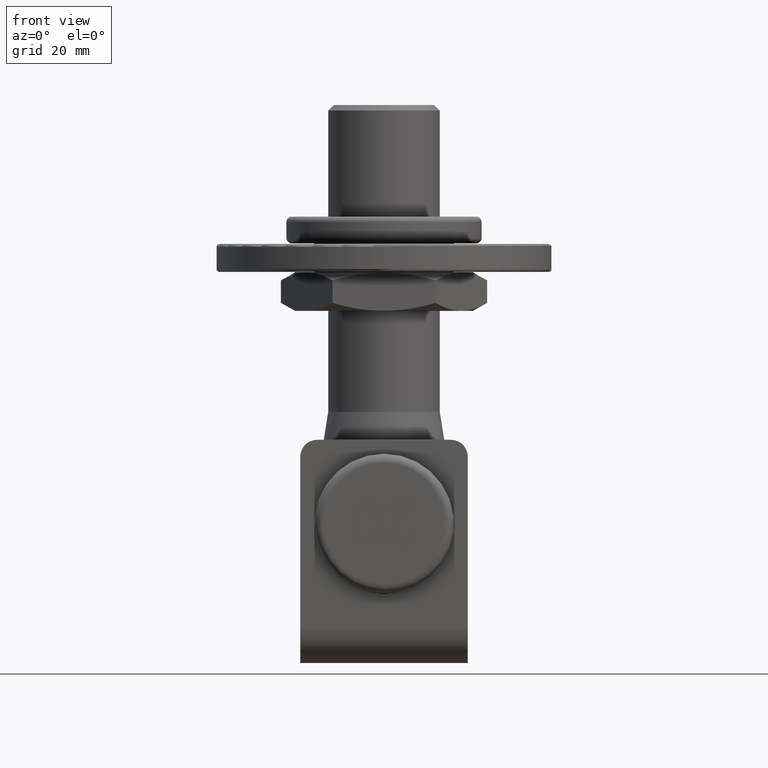
[diagram: clean part render]
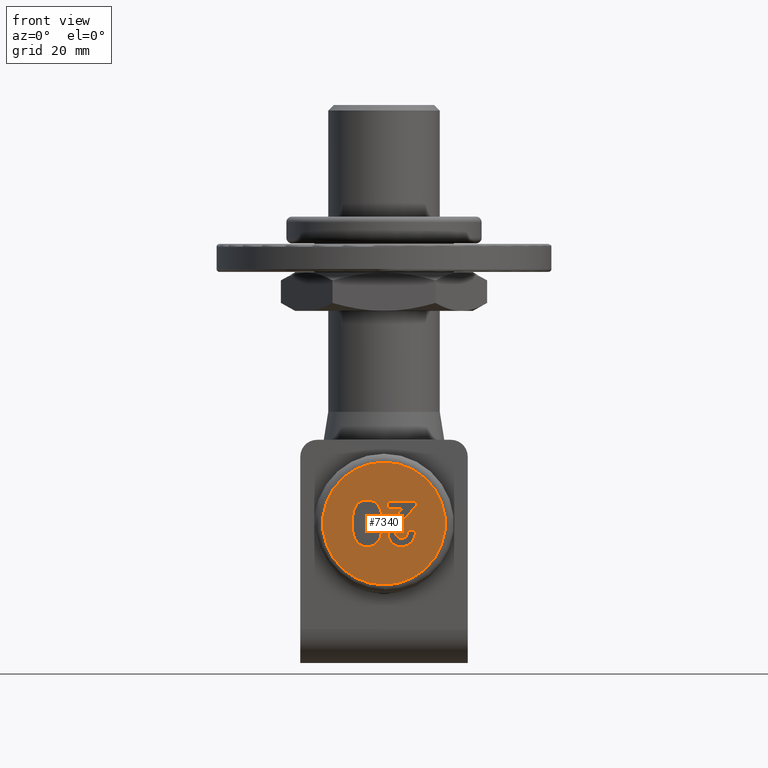
[diagram: same view with one face highlighted and labeled with its STEP entity id]
A machine part, front view. The second image highlights one B-rep face of the part: STEP entity #7340.
In plain terms, the highlighted planar face has unit normal (0, 1, -0).
Its self-contained STEP definition (entity closure, byte-faithful):
#102 = CARTESIAN_POINT ( 'NONE',  ( 5.655544175772400095, 0.000000000000000000, 1.036813794323081739 ) ) ;
#352 = AXIS2_PLACEMENT_3D ( 'NONE', #14722, #10178, #4335 ) ;
#473 = LINE ( 'NONE', #10151, #3681 ) ;
#474 = CARTESIAN_POINT ( 'NONE',  ( -1.797275197971464511, 0.000000000000000000, -0.9322960861938973665 ) ) ;
#489 = CARTESIAN_POINT ( 'NONE',  ( -5.902243589743589425, -0.000000000000000000, -4.000000000000000000 ) ) ;
#491 = CARTESIAN_POINT ( 'NONE',  ( 0.4629416183101647264, 0.000000000000000000, 1.766416286813966563 ) ) ;
#514 = CARTESIAN_POINT ( 'NONE',  ( 5.078828678267104380, 0.000000000000000000, -3.089744806459635118 ) ) ;
#618 = CARTESIAN_POINT ( 'NONE',  ( 0.7238341329331237084, 0.000000000000000000, -2.727839726644675888 ) ) ;
#671 = CARTESIAN_POINT ( 'NONE',  ( 0.5573441786762347583, 0.000000000000000000, -2.295563456860316709 ) ) ;
#707 = CARTESIAN_POINT ( 'NONE',  ( -3.213008426945764384, -0.000000000000000000, 2.715013062503777608 ) ) ;
#726 = CARTESIAN_POINT ( 'NONE',  ( 1.874495746132713858, 0.000000000000000000, -3.972678788740345190 ) ) ;
#733 = CARTESIAN_POINT ( 'NONE',  ( -2.137019230769230393, 0.000000000000000000, 1.660556891025640969 ) ) ;
#822 = CARTESIAN_POINT ( 'NONE',  ( -4.084365449211349031, 0.000000000000000000, 2.124727593738619635 ) ) ;
#858 = VERTEX_POINT ( 'NONE', #3939 ) ;
#917 = CARTESIAN_POINT ( 'NONE',  ( -3.694189072242435312, 0.000000000000000000, 2.568195882646817640 ) ) ;
#966 = EDGE_CURVE ( 'NONE', #13982, #13982, #11692, .T. ) ;
#972 = CARTESIAN_POINT ( 'NONE',  ( -2.137019230769230393, 0.000000000000000000, 1.660556891025640969 ) ) ;
#1000 = CARTESIAN_POINT ( 'NONE',  ( 2.367988351614428666, 0.000000000000000000, 4.081252028798862952 ) ) ;
#1025 = CARTESIAN_POINT ( 'NONE',  ( -3.352342202977410146, 0.000000000000000000, -0.5627216909195109640 ) ) ;
#1109 = CARTESIAN_POINT ( 'NONE',  ( -3.094225761217948900, 0.000000000000000000, 4.141025641025640525 ) ) ;
#1308 = CARTESIAN_POINT ( 'NONE',  ( -2.137019230769230393, 0.000000000000000000, 1.660556891025640969 ) ) ;
#1311 = CARTESIAN_POINT ( 'NONE',  ( 5.082010840145371411, 0.000000000000000000, 3.003103049096201183 ) ) ;
#1491 = EDGE_CURVE ( 'NONE', #4539, #12143, #14408, .T. ) ;
#1533 = CARTESIAN_POINT ( 'NONE',  ( -3.876365341910795514, 0.000000000000000000, 4.039931042971904418 ) ) ;
#1612 = VERTEX_POINT ( 'NONE', #10448 ) ;
#1625 = VERTEX_POINT ( 'NONE', #9378 ) ;
#1642 = CARTESIAN_POINT ( 'NONE',  ( 5.680617421165070624, 0.000000000000000000, -0.7747269361661133225 ) ) ;
#1677 = VECTOR ( 'NONE', #8451, 1000.000000000000000 ) ;
#1733 = CARTESIAN_POINT ( 'NONE',  ( -0.6105769230769229061, -0.000000000000000000, -4.000000000000000000 ) ) ;
#1747 = CARTESIAN_POINT ( 'NONE',  ( 3.812144415608095915, 0.000000000000000000, -4.103735614190932246 ) ) ;
#1797 = CARTESIAN_POINT ( 'NONE',  ( 4.729308829858908325, 0.000000000000000000, -3.555647249885427463 ) ) ;
#1841 = CARTESIAN_POINT ( 'NONE',  ( 1.033835571027489575, 0.000000000000000000, -3.263602371839377181 ) ) ;
#1851 = CARTESIAN_POINT ( 'NONE',  ( -2.453438000801281937, 0.000000000000000000, -1.727827023237179516 ) ) ;
#1892 = CARTESIAN_POINT ( 'NONE',  ( 1.281767219932940405, 0.000000000000000000, -3.553584027998987427 ) ) ;
#1927 = CARTESIAN_POINT ( 'NONE',  ( -3.287208067806062672, 0.000000000000000000, 2.712388658112912854 ) ) ;
#1934 = VECTOR ( 'NONE', #3483, 1000.000000000000000 ) ;
#1942 = CARTESIAN_POINT ( 'NONE',  ( 0.3060388496676075265, -0.000000000000000000, -0.2358523191634786798 ) ) ;
#1980 = CARTESIAN_POINT ( 'NONE',  ( -4.220661359659986012, 0.000000000000000000, 1.744982924655930079 ) ) ;
#2097 = CARTESIAN_POINT ( 'NONE',  ( -2.295601956000945076, 0.000000000000000000, 0.9282282457364093853 ) ) ;
#2235 = DIRECTION ( 'NONE',  ( 0.6847574953382552509, 0.000000000000000000, 0.7287710014662215352 ) ) ;
#2341 = CARTESIAN_POINT ( 'NONE',  ( 1.018837865916632168, -0.000000000000000000, 3.147244637438138870 ) ) ;
#2507 = CARTESIAN_POINT ( 'NONE',  ( 0.9572065304487178405, 1.355252715606880543E-17, 3.061385717147435681 ) ) ;
#2557 = CARTESIAN_POINT ( 'NONE',  ( -2.453438000801281937, -0.000000000000000000, -1.727827023237179516 ) ) ;
#2580 = VERTEX_POINT ( 'NONE', #4886 ) ;
#2632 = CARTESIAN_POINT ( 'NONE',  ( 4.577621429217217930, 0.000000000000000000, 3.601908964568982796 ) ) ;
#2885 = CARTESIAN_POINT ( 'NONE',  ( -5.375648293950741063, 0.000000000000000000, 2.729209880735643967 ) ) ;
#2937 = CARTESIAN_POINT ( 'NONE',  ( 1.560890092487003722, 0.000000000000000000, -3.790492124528212603 ) ) ;
#3000 = CARTESIAN_POINT ( 'NONE',  ( -0.7629474483434726118, 0.000000000000000000, 1.206803346592360215 ) ) ;
#3007 = B_SPLINE_CURVE_WITH_KNOTS ( 'NONE', 3,
 ( #733, #12909, #5569, #11506, #4404, #9168, #6681, #15212, #3260, #10407, #5526 ),
 .UNSPECIFIED., .F., .F.,
 ( 4, 1, 1, 1, 1, 1, 1, 1, 4 ),
 ( 0.000000000000000000, 0.1327548717475874607, 0.2572338481110650887, 0.3786007316763534969, 0.5014062774984534565, 0.6239419536469537064, 0.7436418348746460794, 0.8681208112381233466, 1.000000000000000000 ),
 .UNSPECIFIED. ) ;
#3123 = CARTESIAN_POINT ( 'NONE',  ( -4.137617043480065426, 0.000000000000000000, 2.006403472534702193 ) ) ;
#3143 = FACE_BOUND ( 'NONE', #6731, .T. ) ;
#3148 = CARTESIAN_POINT ( 'NONE',  ( 4.595776805851754077, 0.000000000000000000, -3.679473332939526387 ) ) ;
#3209 = EDGE_CURVE ( 'NONE', #6645, #1625, #9176, .T. ) ;
#3260 = CARTESIAN_POINT ( 'NONE',  ( -2.960541441748297586, 0.000000000000000000, 2.705722596143722125 ) ) ;
#3288 = CARTESIAN_POINT ( 'NONE',  ( -3.164839607124665832, -0.000000000000000000, -0.3552076562556815142 ) ) ;
#3296 = DIRECTION ( 'NONE',  ( -1.000000000000000000, 0.000000000000000000, 0.000000000000000000 ) ) ;
#3357 = VERTEX_POINT ( 'NONE', #6004 ) ;
#3395 = CARTESIAN_POINT ( 'NONE',  ( -2.846840657974124333, 0.000000000000000000, 0.03015276908359402694 ) ) ;
#3432 = PLANE ( 'NONE',  #12013 ) ;
#3483 = DIRECTION ( 'NONE',  ( 1.000000000000000000, 0.000000000000000000, 0.000000000000000000 ) ) ;
#3681 = VECTOR ( 'NONE', #5432, 1000.000000000000000 ) ;
#3720 = CARTESIAN_POINT ( 'NONE',  ( 4.428274317030202134, 0.000000000000000000, 3.715160959169337751 ) ) ;
#3750 = CARTESIAN_POINT ( 'NONE',  ( 0.3425072785023969280, 0.000000000000000000, 0.8971957510282908554 ) ) ;
#3846 = CARTESIAN_POINT ( 'NONE',  ( 5.698717948717948900, 0.000000000000000000, -0.03443008814102595239 ) ) ;
#3885 = VERTEX_POINT ( 'NONE', #8492 ) ;
#3896 = CARTESIAN_POINT ( 'NONE',  ( 5.569821722541247411, 0.000000000000000000, -1.731633225918342678 ) ) ;
#3898 = ORIENTED_EDGE ( 'NONE', *, *, #6453, .T. ) ;
#3922 = VERTEX_POINT ( 'NONE', #14479 ) ;
#3939 = CARTESIAN_POINT ( 'NONE',  ( -0.7123397435897438346, 0.000000000000000000, 1.760729667467948012 ) ) ;
#3941 = CARTESIAN_POINT ( 'NONE',  ( -3.185535030508386711, -0.000000000000000000, 4.139297340311456352 ) ) ;
#4054 = CARTESIAN_POINT ( 'NONE',  ( -0.9214497629501844367, 0.000000000000000000, 0.6236742223507992788 ) ) ;
#4102 = CARTESIAN_POINT ( 'NONE',  ( -1.190608166641720533, 0.000000000000000000, 0.005292778401732286912 ) ) ;
#4192 = CARTESIAN_POINT ( 'NONE',  ( 1.713299733088972765, 0.000000000000000000, -3.888069143573032793 ) ) ;
#4194 = ORIENTED_EDGE ( 'NONE', *, *, #14097, .T. ) ;
#4197 = CARTESIAN_POINT ( 'NONE',  ( 4.971032620043923878, 0.000000000000000000, -3.260701125862149663 ) ) ;
#4230 = DIRECTION ( 'NONE',  ( -1.000000000000000000, 0.000000000000000000, 0.000000000000000000 ) ) ;
#4239 = CARTESIAN_POINT ( 'NONE',  ( 4.153838360228597537, 0.000000000000000000, -3.974612097571684988 ) ) ;
#4335 = DIRECTION ( 'NONE',  ( 0.000000000000000000, 0.000000000000000000, 1.000000000000000000 ) ) ;
#4404 = CARTESIAN_POINT ( 'NONE',  ( -2.294942116341228022, 0.000000000000000000, 2.263028827021325462 ) ) ;
#4497 = EDGE_LOOP ( 'NONE', ( #9504 ) ) ;
#4539 = VERTEX_POINT ( 'NONE', #8491 ) ;
#4540 = CARTESIAN_POINT ( 'NONE',  ( -2.204150980432503903, 0.000000000000000000, 1.182743466356510620 ) ) ;
#4629 = CARTESIAN_POINT ( 'NONE',  ( 0.000000000000000000, 0.000000000000000000, 11.00000000000000178 ) ) ;
#4653 = CARTESIAN_POINT ( 'NONE',  ( -2.995166320929204318, 0.000000000000000000, -0.1582817906552571319 ) ) ;
#4740 = CARTESIAN_POINT ( 'NONE',  ( -0.8854064119807786293, 0.000000000000000000, 2.657698934012234560 ) ) ;
#4850 = CARTESIAN_POINT ( 'NONE',  ( -2.445391423116449303, 0.000000000000000000, 4.072461149809852188 ) ) ;
#4886 = CARTESIAN_POINT ( 'NONE',  ( -3.552158453525640969, -0.000000000000000000, -0.7769806690705129970 ) ) ;
#4928 = EDGE_CURVE ( 'NONE', #12143, #6485, #9039, .T. ) ;
#4950 = CARTESIAN_POINT ( 'NONE',  ( 4.848140709206828269, 0.000000000000000000, 3.330792493200804838 ) ) ;
#5061 = CARTESIAN_POINT ( 'NONE',  ( -3.626380165319885496, 0.000000000000000000, 4.097154254762692460 ) ) ;
#5067 = CARTESIAN_POINT ( 'NONE',  ( 5.697959882691693956, -0.000000000000000000, -0.1627091242787807035 ) ) ;
#5119 = CARTESIAN_POINT ( 'NONE',  ( 5.277890020305247454, 0.000000000000000000, -2.707997397638125747 ) ) ;
#5162 = CARTESIAN_POINT ( 'NONE',  ( -4.112476950301005019, 0.000000000000000000, 3.954341984472365734 ) ) ;
#5218 = CARTESIAN_POINT ( 'NONE',  ( -1.085779833108662551, 0.000000000000000000, 0.2169055762161827272 ) ) ;
#5263 = CARTESIAN_POINT ( 'NONE',  ( -2.373466487656906043, -0.000000000000000000, -1.636003558742837871 ) ) ;
#5365 = CARTESIAN_POINT ( 'NONE',  ( 3.019493689903846256, 0.000000000000000000, -4.203525641025641413 ) ) ;
#5408 = CARTESIAN_POINT ( 'NONE',  ( 0.9219270566348457541, 0.000000000000000000, -3.099122237162234672 ) ) ;
#5416 = CARTESIAN_POINT ( 'NONE',  ( 4.852604595309395918, 0.000000000000000000, -3.414261323765183320 ) ) ;
#5421 = CARTESIAN_POINT ( 'NONE',  ( -0.8051026255691868805, 0.000000000000000000, 1.015941922423278410 ) ) ;
#5432 = DIRECTION ( 'NONE',  ( 0.000000000000000000, 0.000000000000000000, 1.000000000000000000 ) ) ;
#5463 = CARTESIAN_POINT ( 'NONE',  ( 2.410403817584000130, 0.000000000000000000, -4.146716590959108828 ) ) ;
#5520 = CARTESIAN_POINT ( 'NONE',  ( 4.309809776312897078, 0.000000000000000000, -3.889471215769248591 ) ) ;
#5526 = CARTESIAN_POINT ( 'NONE',  ( -3.175318008814103088, 1.355252715606880543E-17, 2.716346153846153744 ) ) ;
#5553 = B_SPLINE_CURVE_WITH_KNOTS ( 'NONE', 3,
 ( #11795, #707, #1927, #15292, #8024, #14059, #917, #15235, #14168, #13949, #10373, #822, #3123, #6922, #1980, #15404, #9254, #11584, #12776 ),
 .UNSPECIFIED., .F., .F.,
 ( 4, 1, 1, 1, 1, 1, 1, 1, 1, 1, 1, 1, 1, 1, 1, 1, 4 ),
 ( 0.000000000000000000, 0.05646686847186263569, 0.1111640986969633232, 0.1649370968759849010, 0.2183217523125940140, 0.2723929232482769081, 0.3279763434477040995, 0.3852910519840209158, 0.4449029182928196935, 0.5068438192198356784, 0.5694881852629682939, 0.6341532155537227267, 0.7009760953100501180, 0.7708974968462685151, 0.8436256105557796703, 0.9196596761155402255, 1.000000000000000000 ),
 .UNSPECIFIED. ) ;
#5561 = ORIENTED_EDGE ( 'NONE', *, *, #15245, .T. ) ;
#5569 = CARTESIAN_POINT ( 'NONE',  ( -2.145127047803850218, 0.000000000000000000, 1.876669145664015659 ) ) ;
#5801 = CARTESIAN_POINT ( 'NONE',  ( -2.500218956090486611, 0.000000000000000000, 0.5220679356594685183 ) ) ;
#5883 = CARTESIAN_POINT ( 'NONE',  ( -2.982144928523934979, -0.000000000000000000, 4.137528423575275838 ) ) ;
#5931 = CARTESIAN_POINT ( 'NONE',  ( -1.620664559944658523, 0.000000000000000000, 3.666011698111562023 ) ) ;
#6004 = CARTESIAN_POINT ( 'NONE',  ( -3.281850961538461675, -0.000000000000000000, -2.677083333333333481 ) ) ;
#6032 = ORIENTED_EDGE ( 'NONE', *, *, #6529, .T. ) ;
#6111 = B_SPLINE_CURVE_WITH_KNOTS ( 'NONE', 3,
 ( #13605, #6416, #13698, #11194, #7640, #11349, #2885, #14892, #13499, #12294, #14835, #13546, #6356, #5162, #1533, #5061, #8856, #3941, #7590 ),
 .UNSPECIFIED., .F., .F.,
 ( 4, 1, 1, 1, 1, 1, 1, 1, 1, 1, 1, 1, 1, 1, 1, 1, 4 ),
 ( 0.000000000000000000, 0.07493991020077266085, 0.1464280851715763498, 0.2147529716359184992, 0.2804215366912470864, 0.3436044295193644849, 0.4055426388186583742, 0.4661994619307758825, 0.5265381448244667029, 0.5859019063092089086, 0.6440895746157923041, 0.7016130759883658641, 0.7587535874365710642, 0.8166294493897661155, 0.8756554749553047134, 0.9366243322865291931, 1.000000000000000000 ),
 .UNSPECIFIED. ) ;
#6131 = CARTESIAN_POINT ( 'NONE',  ( 4.109693178513706080, 0.000000000000000000, 3.903754660982265534 ) ) ;
#6346 = FACE_OUTER_BOUND ( 'NONE', #4497, .T. ) ;
#6356 = CARTESIAN_POINT ( 'NONE',  ( -4.336948977161025454, 0.000000000000000000, 3.847215530833077324 ) ) ;
#6379 = CARTESIAN_POINT ( 'NONE',  ( -0.6105769230769229061, -0.000000000000000000, -4.000000000000000000 ) ) ;
#6416 = CARTESIAN_POINT ( 'NONE',  ( -5.692564976509389751, -0.000000000000000000, 1.399436132702227997 ) ) ;
#6453 = EDGE_CURVE ( 'NONE', #11202, #8545, #11315, .T. ) ;
#6469 = CARTESIAN_POINT ( 'NONE',  ( 5.618066848438044047, 0.000000000000000000, -1.434668924935119438 ) ) ;
#6485 = VERTEX_POINT ( 'NONE', #2507 ) ;
#6529 = EDGE_CURVE ( 'NONE', #3885, #4539, #12431, .T. ) ;
#6570 = CARTESIAN_POINT ( 'NONE',  ( 2.223275419319498347, 0.000000000000000000, -4.103404573955554469 ) ) ;
#6599 = CARTESIAN_POINT ( 'NONE',  ( 0.9042018347566534997, -0.000000000000000000, 2.973988579981912572 ) ) ;
#6629 = CARTESIAN_POINT ( 'NONE',  ( -0.8576735875219000382, 0.000000000000000000, 0.8217592550030331511 ) ) ;
#6645 = VERTEX_POINT ( 'NONE', #15205 ) ;
#6681 = CARTESIAN_POINT ( 'NONE',  ( -2.578647560328831023, 0.000000000000000000, 2.552544205070224059 ) ) ;
#6731 = EDGE_LOOP ( 'NONE', ( #15159, #12515, #6032, #13457, #12936 ) ) ;
#6873 = CARTESIAN_POINT ( 'NONE',  ( -2.596889408331713778, 0.000000000000000000, 0.3684513095209339673 ) ) ;
#6881 = CARTESIAN_POINT ( 'NONE',  ( -4.274038461538460787, 0.000000000000000000, 1.291666666666666741 ) ) ;
#6922 = CARTESIAN_POINT ( 'NONE',  ( -4.184501682538832590, 0.000000000000000000, 1.880273495763631564 ) ) ;
#6925 = CARTESIAN_POINT ( 'NONE',  ( -2.395269469221359859, 0.000000000000000000, 0.7073027578703243723 ) ) ;
#7178 = CARTESIAN_POINT ( 'NONE',  ( 2.086204939287279458, 0.000000000000000000, 3.996414933597113084 ) ) ;
#7286 = CARTESIAN_POINT ( 'NONE',  ( -0.7123397435897438346, 0.000000000000000000, 1.760729667467948012 ) ) ;
#7340 = ADVANCED_FACE ( 'NONE', ( #10726, #6346, #3143 ), #3432, .F. ) ;
#7371 = CARTESIAN_POINT ( 'NONE',  ( 4.716730086732782823, 0.000000000000000000, 3.472795843162341356 ) ) ;
#7418 = CARTESIAN_POINT ( 'NONE',  ( 5.186775702113008535, 0.000000000000000000, 2.818818344521386798 ) ) ;
#7499 = B_SPLINE_CURVE_WITH_KNOTS ( 'NONE', 3,
 ( #15407, #8240, #1025, #3288, #4653, #3395, #11798, #6873, #5801, #6925, #2097, #4540, #8083, #15566, #972 ),
 .UNSPECIFIED., .F., .F.,
 ( 4, 1, 1, 1, 1, 1, 1, 1, 1, 1, 1, 1, 4 ),
 ( 0.000000000000000000, 0.1038439242634203730, 0.2011148859465236582, 0.2911157193792174303, 0.3743484039713635969, 0.4507073961858711342, 0.5200404120163613086, 0.5832583224453373738, 0.6395782998253258800, 0.7415365099482678080, 0.8350600486817364443, 0.9208729600458338549, 0.9999999999999998890 ),
 .UNSPECIFIED. ) ;
#7590 = CARTESIAN_POINT ( 'NONE',  ( -3.094225761217948900, 0.000000000000000000, 4.141025641025640525 ) ) ;
#7640 = CARTESIAN_POINT ( 'NONE',  ( -5.568639152015999905, 0.000000000000000000, 2.204888930459387719 ) ) ;
#7653 = CARTESIAN_POINT ( 'NONE',  ( -0.7349885684765512517, 0.000000000000000000, 1.394397028974809771 ) ) ;
#7703 = CARTESIAN_POINT ( 'NONE',  ( 5.365118052294042705, 0.000000000000000000, -2.493903315433332324 ) ) ;
#7709 = CARTESIAN_POINT ( 'NONE',  ( -1.312666189866120270, -0.000000000000000000, -0.2152006577228012252 ) ) ;
#7759 = CARTESIAN_POINT ( 'NONE',  ( 3.432907295513866863, 0.000000000000000000, -4.181069160685673580 ) ) ;
#7846 = CARTESIAN_POINT ( 'NONE',  ( 0.6347484021890796857, 0.000000000000000000, -2.521029020208482407 ) ) ;
#7849 = CARTESIAN_POINT ( 'NONE',  ( 3.626484882609418037, 0.000000000000000000, -4.146855192426452952 ) ) ;
#7853 = CARTESIAN_POINT ( 'NONE',  ( -2.217811564540906222, 0.000000000000000000, -1.457280239098903474 ) ) ;
#7873 = CARTESIAN_POINT ( 'NONE',  ( 0.6649883967273197971, 0.000000000000000000, 2.486194247637050214 ) ) ;
#7896 = CARTESIAN_POINT ( 'NONE',  ( 1.153131053881268464, 0.000000000000000000, -3.415766660805239940 ) ) ;
#8024 = CARTESIAN_POINT ( 'NONE',  ( -3.500061466467534022, 0.000000000000000000, 2.664129744879789374 ) ) ;
#8083 = CARTESIAN_POINT ( 'NONE',  ( -2.148405282260224425, 0.000000000000000000, 1.426001400926590668 ) ) ;
#8240 = CARTESIAN_POINT ( 'NONE',  ( -3.484117449646309428, -0.000000000000000000, -0.7040216583616464296 ) ) ;
#8272 = CARTESIAN_POINT ( 'NONE',  ( -3.281850961538461675, -0.000000000000000000, -2.677083333333333481 ) ) ;
#8280 = CARTESIAN_POINT ( 'NONE',  ( -5.902243589743589425, -0.000000000000000000, -3.278119991987179294 ) ) ;
#8356 = CARTESIAN_POINT ( 'NONE',  ( -3.175318008814103088, 1.355252715606880543E-17, 2.716346153846153744 ) ) ;
#8431 = CARTESIAN_POINT ( 'NONE',  ( 3.574784197364051508, 0.000000000000000000, 4.083250785891809898 ) ) ;
#8434 = EDGE_CURVE ( 'NONE', #10791, #6645, #5553, .T. ) ;
#8441 = CARTESIAN_POINT ( 'NONE',  ( -2.763336877282517090, 0.000000000000000000, 4.130701035549255273 ) ) ;
#8451 = DIRECTION ( 'NONE',  ( 0.000000000000000000, 0.000000000000000000, -1.000000000000000000 ) ) ;
#8491 = CARTESIAN_POINT ( 'NONE',  ( 3.019493689903846256, 0.000000000000000000, -4.203525641025641413 ) ) ;
#8492 = CARTESIAN_POINT ( 'NONE',  ( 5.698717948717948900, 0.000000000000000000, -0.03443008814102595239 ) ) ;
#8497 = VERTEX_POINT ( 'NONE', #14918 ) ;
#8507 = ORIENTED_EDGE ( 'NONE', *, *, #9867, .T. ) ;
#8544 = CARTESIAN_POINT ( 'NONE',  ( 5.696651188579902048, 0.000000000000000000, 0.3388682412665434684 ) ) ;
#8545 = VERTEX_POINT ( 'NONE', #6379 ) ;
#8597 = CARTESIAN_POINT ( 'NONE',  ( 5.698717948717948900, 0.000000000000000000, -0.03443008814102595239 ) ) ;
#8648 = CARTESIAN_POINT ( 'NONE',  ( 5.282501325464853181, 0.000000000000000000, 2.619996014895177527 ) ) ;
#8698 = CARTESIAN_POINT ( 'NONE',  ( 4.969008740543736202, 0.000000000000000000, 3.173752078826038936 ) ) ;
#8717 = CARTESIAN_POINT ( 'NONE',  ( 5.653289301428645608, 0.000000000000000000, -1.115644004302293046 ) ) ;
#8738 = VECTOR ( 'NONE', #4230, 1000.000000000000000 ) ;
#8856 = CARTESIAN_POINT ( 'NONE',  ( -3.364685927559752265, 0.000000000000000000, 4.135906374358854443 ) ) ;
#8870 = B_SPLINE_CURVE_WITH_KNOTS ( 'NONE', 3,
 ( #14145, #2341, #13184, #14411, #13074, #14356, #7178, #1000, #13126, #10840, #15654 ),
 .UNSPECIFIED., .F., .F.,
 ( 4, 1, 1, 1, 1, 1, 1, 1, 4 ),
 ( 0.000000000000000000, 0.1323140339085642214, 0.2587000085531550031, 0.3809118214856535012, 0.5005348689728935652, 0.6209226176484482496, 0.7423757653984726090, 0.8682808341788562645, 1.000000000000000000 ),
 .UNSPECIFIED. ) ;
#8903 = ORIENTED_EDGE ( 'NONE', *, *, #14340, .T. ) ;
#9011 = CARTESIAN_POINT ( 'NONE',  ( 0.8185725394706182545, 0.000000000000000000, -2.920447973612386949 ) ) ;
#9023 = CARTESIAN_POINT ( 'NONE',  ( -0.7123397435897438346, 0.000000000000000000, 1.760729667467948012 ) ) ;
#9039 = B_SPLINE_CURVE_WITH_KNOTS ( 'NONE', 3,
 ( #15583, #12979, #15554, #3750, #11575, #491, #12566, #7873, #11477, #6599, #14975 ),
 .UNSPECIFIED., .F., .F.,
 ( 4, 1, 1, 1, 1, 1, 1, 1, 4 ),
 ( 0.000000000000000000, 0.1610711239484212964, 0.3107888083803543311, 0.4499038238309442939, 0.5783763165061850398, 0.6966172119048390510, 0.8059873227104094040, 0.9065617032890808114, 1.000000000000000000 ),
 .UNSPECIFIED. ) ;
#9075 = CARTESIAN_POINT ( 'NONE',  ( -1.455193599307816887, 0.000000000000000000, -0.4443791371122086664 ) ) ;
#9112 = CARTESIAN_POINT ( 'NONE',  ( 0.3074963118014607533, 0.000000000000000000, -0.4819197918950698378 ) ) ;
#9164 = CARTESIAN_POINT ( 'NONE',  ( 3.229226202437179616, 0.000000000000000000, -4.199977898119700903 ) ) ;
#9168 = CARTESIAN_POINT ( 'NONE',  ( -2.423239385318834316, 0.000000000000000000, 2.421948978617945780 ) ) ;
#9176 = LINE ( 'NONE', #6881, #9758 ) ;
#9192 = CARTESIAN_POINT ( 'NONE',  ( 0.3052884615384615641, 0.000000000000000000, -0.1091621594551286795 ) ) ;
#9227 = VERTEX_POINT ( 'NONE', #1308 ) ;
#9254 = CARTESIAN_POINT ( 'NONE',  ( -4.267006066071695969, 0.000000000000000000, 1.449582782190085961 ) ) ;
#9350 = CARTESIAN_POINT ( 'NONE',  ( 12.50000000000000000, 6.123233995736829515E-18, 0.000000000000000000 ) ) ;
#9378 = CARTESIAN_POINT ( 'NONE',  ( -5.698717948717948900, 0.000000000000000000, 1.291666666666666741 ) ) ;
#9504 = ORIENTED_EDGE ( 'NONE', *, *, #966, .T. ) ;
#9555 = CARTESIAN_POINT ( 'NONE',  ( -2.148465132005056066, 0.000000000000000000, 3.975045941067412159 ) ) ;
#9603 = CARTESIAN_POINT ( 'NONE',  ( 3.182707516310513629, 0.000000000000000000, 4.137988964797351343 ) ) ;
#9756 = VECTOR ( 'NONE', #2235, 1000.000000000000000 ) ;
#9758 = VECTOR ( 'NONE', #3296, 1000.000000000000000 ) ;
#9812 = CARTESIAN_POINT ( 'NONE',  ( 5.448735156180866568, 0.000000000000000000, 2.174458556773422924 ) ) ;
#9863 = CARTESIAN_POINT ( 'NONE',  ( 4.272278203493279136, 0.000000000000000000, 3.815194363517121712 ) ) ;
#9867 = EDGE_CURVE ( 'NONE', #1612, #2580, #10906, .T. ) ;
#9877 = LINE ( 'NONE', #8272, #1934 ) ;
#10028 = ORIENTED_EDGE ( 'NONE', *, *, #12409, .T. ) ;
#10137 = CARTESIAN_POINT ( 'NONE',  ( 5.181902546291112799, 0.000000000000000000, -2.906432071037211351 ) ) ;
#10142 = CARTESIAN_POINT ( 'NONE',  ( -0.9979105029854623554, 0.000000000000000000, 0.4228098939760751573 ) ) ;
#10151 = CARTESIAN_POINT ( 'NONE',  ( -5.902243589743589425, -0.000000000000000000, -4.000000000000000000 ) ) ;
#10178 = DIRECTION ( 'NONE',  ( 0.000000000000000000, -1.000000000000000000, 0.000000000000000000 ) ) ;
#10203 = DIRECTION ( 'NONE',  ( -0.6575212211385358385, 0.000000000000000000, -0.7534360249898385264 ) ) ;
#10237 = CARTESIAN_POINT ( 'NONE',  ( 2.605007268621599703, 0.000000000000000000, -4.181209755140413264 ) ) ;
#10249 = CARTESIAN_POINT ( 'NONE',  ( -0.7136714248626868651, -0.000000000000000000, 1.700264191952667314 ) ) ;
#10282 = EDGE_CURVE ( 'NONE', #10454, #3885, #11367, .T. ) ;
#10293 = CARTESIAN_POINT ( 'NONE',  ( 0.3866437110973287572, 0.000000000000000000, -1.489088539879430018 ) ) ;
#10338 = CARTESIAN_POINT ( 'NONE',  ( 0.3052884615384615641, 0.000000000000000000, -0.1091621594551286795 ) ) ;
#10373 = CARTESIAN_POINT ( 'NONE',  ( -4.019961197748575188, 0.000000000000000000, 2.233683800245235052 ) ) ;
#10407 = CARTESIAN_POINT ( 'NONE',  ( -3.102361197353023403, -0.000000000000000000, 2.712737469216676800 ) ) ;
#10448 = CARTESIAN_POINT ( 'NONE',  ( -5.902243589743589425, -0.000000000000000000, -3.278119991987179294 ) ) ;
#10454 = VERTEX_POINT ( 'NONE', #11334 ) ;
#10705 = EDGE_CURVE ( 'NONE', #2580, #9227, #7499, .T. ) ;
#10726 = FACE_BOUND ( 'NONE', #14782, .T. ) ;
#10728 = CARTESIAN_POINT ( 'NONE',  ( -0.7226449095674799539, 0.000000000000000000, 2.061916987739096374 ) ) ;
#10788 = CARTESIAN_POINT ( 'NONE',  ( -1.194227208463307655, 0.000000000000000000, 3.216070846194533317 ) ) ;
#10791 = VERTEX_POINT ( 'NONE', #8356 ) ;
#10831 = CARTESIAN_POINT ( 'NONE',  ( 3.382412797037607444, 0.000000000000000000, 4.116187188909901984 ) ) ;
#10840 = CARTESIAN_POINT ( 'NONE',  ( 2.873024180653310111, -0.000000000000000000, 4.137526298127976787 ) ) ;
#10854 = CARTESIAN_POINT ( 'NONE',  ( -0.6105769230769229061, -0.000000000000000000, -2.677083333333333481 ) ) ;
#10881 = CARTESIAN_POINT ( 'NONE',  ( 3.938445763467917082, 0.000000000000000000, 3.976522921025607893 ) ) ;
#10906 = LINE ( 'NONE', #8280, #9756 ) ;
#10933 = ORIENTED_EDGE ( 'NONE', *, *, #8434, .T. ) ;
#10971 = ORIENTED_EDGE ( 'NONE', *, *, #3209, .T. ) ;
#10981 = EDGE_CURVE ( 'NONE', #13472, #1612, #473, .T. ) ;
#11035 = CARTESIAN_POINT ( 'NONE',  ( 5.698016509708522470, -0.000000000000000000, 0.09226386418544381407 ) ) ;
#11136 = CARTESIAN_POINT ( 'NONE',  ( 5.571525201864685251, 0.000000000000000000, 1.648486364881818655 ) ) ;
#11194 = CARTESIAN_POINT ( 'NONE',  ( -5.632719819674847805, 0.000000000000000000, 1.915878225140207336 ) ) ;
#11202 = VERTEX_POINT ( 'NONE', #15434 ) ;
#11295 = EDGE_CURVE ( 'NONE', #3922, #858, #11669, .T. ) ;
#11315 = LINE ( 'NONE', #10854, #1677 ) ;
#11334 = CARTESIAN_POINT ( 'NONE',  ( 2.978152544070512775, 0.000000000000000000, 4.141025641025640525 ) ) ;
#11349 = CARTESIAN_POINT ( 'NONE',  ( -5.483114994210255055, 0.000000000000000000, 2.476032323922627842 ) ) ;
#11367 = B_SPLINE_CURVE_WITH_KNOTS ( 'NONE', 3,
 ( #13119, #15703, #9603, #10831, #8431, #13284, #10881, #6131, #9863, #3720, #2632, #7371, #4950, #8698, #1311, #7418, #8648, #12133, #9812, #13534, #11136, #13339, #102, #14603, #8544, #11035, #8597 ),
 .UNSPECIFIED., .F., .F.,
 ( 4, 1, 1, 1, 1, 1, 1, 1, 1, 1, 1, 1, 1, 1, 1, 1, 1, 1, 1, 1, 1, 1, 1, 1, 4 ),
 ( 0.000000000000000000, 0.03663489025512738084, 0.07203398234778958520, 0.1066259706074962205, 0.1403056939382974488, 0.1736194704926826982, 0.2064256725696815009, 0.2390670061327426488, 0.2718828805625947420, 0.3048398888131204632, 0.3385290337045874787, 0.3726161878593849952, 0.4075482500265397157, 0.4437189059571696181, 0.4813115090919060646, 0.5201129981462018215, 0.5609129028334481903, 0.6040246006136040791, 0.6500745638656779679, 0.6995722277770579645, 0.7523625390892968445, 0.8087887173463875756, 0.8689542125204782197, 0.9326747199379386011, 1.000000000000000000 ),
 .UNSPECIFIED. ) ;
#11425 = LINE ( 'NONE', #2557, #11979 ) ;
#11448 = CARTESIAN_POINT ( 'NONE',  ( 2.044924457995196398, 0.000000000000000000, -4.043804362932614360 ) ) ;
#11477 = CARTESIAN_POINT ( 'NONE',  ( 0.7941443606574321024, 0.000000000000000000, 2.792519598142616744 ) ) ;
#11503 = CARTESIAN_POINT ( 'NONE',  ( 3.090551910416934334, -0.000000000000000000, -4.202323651430948104 ) ) ;
#11506 = CARTESIAN_POINT ( 'NONE',  ( -2.203895692964122688, 0.000000000000000000, 2.079440271687462261 ) ) ;
#11575 = CARTESIAN_POINT ( 'NONE',  ( 0.3912905492915476624, 0.000000000000000000, 1.350751313810874654 ) ) ;
#11584 = CARTESIAN_POINT ( 'NONE',  ( -4.271651685822079436, -0.000000000000000000, 1.345262962770624071 ) ) ;
#11669 = B_SPLINE_CURVE_WITH_KNOTS ( 'NONE', 3,
 ( #1109, #5883, #8441, #4850, #9555, #14512, #5931, #14459, #10788, #11984, #4740, #13295, #10728, #12036, #7286 ),
 .UNSPECIFIED., .F., .F.,
 ( 4, 1, 1, 1, 1, 1, 1, 1, 1, 1, 1, 1, 4 ),
 ( 0.000000000000000000, 0.08961452888211547674, 0.1749485612865261941, 0.2575481258745663804, 0.3389007874900941131, 0.4200531858831904608, 0.5014014271193617533, 0.5842520267159579950, 0.6703704767286310373, 0.7564732666582516529, 0.8392065940498484311, 0.9201204666578203240, 1.000000000000000000 ),
 .UNSPECIFIED. ) ;
#11692 = CIRCLE ( 'NONE', #352, 11.00000000000000178 ) ;
#11795 = CARTESIAN_POINT ( 'NONE',  ( -3.175318008814103088, 1.355252715606880543E-17, 2.716346153846153744 ) ) ;
#11798 = CARTESIAN_POINT ( 'NONE',  ( -2.712078678412904953, 0.000000000000000000, 0.2039839726736076275 ) ) ;
#11979 = VECTOR ( 'NONE', #10203, 1000.000000000000114 ) ;
#11984 = CARTESIAN_POINT ( 'NONE',  ( -1.025553830211470396, 0.000000000000000000, 2.944866338681040752 ) ) ;
#12013 = AXIS2_PLACEMENT_3D ( 'NONE', #9350, #14096, #13081 ) ;
#12036 = CARTESIAN_POINT ( 'NONE',  ( -0.7157600360901624770, -0.000000000000000000, 1.860693970320535406 ) ) ;
#12133 = CARTESIAN_POINT ( 'NONE',  ( 5.370260566065430119, 0.000000000000000000, 2.406277269533635632 ) ) ;
#12143 = VERTEX_POINT ( 'NONE', #9192 ) ;
#12251 = ORIENTED_EDGE ( 'NONE', *, *, #15144, .T. ) ;
#12294 = CARTESIAN_POINT ( 'NONE',  ( -4.931651332867913240, 0.000000000000000000, 3.381347277548414798 ) ) ;
#12318 = ORIENTED_EDGE ( 'NONE', *, *, #12838, .T. ) ;
#12348 = CARTESIAN_POINT ( 'NONE',  ( 5.446177570223304620, 0.000000000000000000, -2.261586858026130464 ) ) ;
#12393 = CARTESIAN_POINT ( 'NONE',  ( 2.948437387331018567, -0.000000000000000000, -4.202300465860082213 ) ) ;
#12409 = EDGE_CURVE ( 'NONE', #8497, #3357, #11425, .T. ) ;
#12431 = B_SPLINE_CURVE_WITH_KNOTS ( 'NONE', 3,
 ( #3846, #5067, #14899, #1642, #8717, #6469, #3896, #14953, #12348, #7703, #5119, #10137, #514, #4197, #5416, #1797, #3148, #12695, #5520, #4239, #13868, #1747, #7849, #7759, #9164, #11503, #5365 ),
 .UNSPECIFIED., .F., .F.,
 ( 4, 1, 1, 1, 1, 1, 1, 1, 1, 1, 1, 1, 1, 1, 1, 1, 1, 1, 1, 1, 1, 1, 1, 1, 4 ),
 ( 0.000000000000000000, 0.06849087449695397123, 0.1330765404908784977, 0.1938289871915770957, 0.2510828574460499674, 0.3044008371534409063, 0.3544083437255269864, 0.4012947817777443027, 0.4447006845454780644, 0.4856924920892444764, 0.5246764844274039996, 0.5623067591777589636, 0.5979465846525345851, 0.6324735490267262561, 0.6657520428969367909, 0.6979852995504443047, 0.7295862241486804622, 0.7608251968744890181, 0.7923550795612060993, 0.8243126039626629264, 0.8571562719790690732, 0.8909268871454045780, 0.9259604429162998640, 0.9620613229943376643, 1.000000000000000000 ),
 .UNSPECIFIED. ) ;
#12515 = ORIENTED_EDGE ( 'NONE', *, *, #10282, .T. ) ;
#12547 = CARTESIAN_POINT ( 'NONE',  ( -1.616468843625913587, -0.000000000000000000, -0.6835366760949115328 ) ) ;
#12566 = CARTESIAN_POINT ( 'NONE',  ( 0.5515371742017904921, 0.000000000000000000, 2.145730171855938284 ) ) ;
#12640 = CARTESIAN_POINT ( 'NONE',  ( 0.4320282794000732673, 0.000000000000000000, -1.780575894750609400 ) ) ;
#12689 = CARTESIAN_POINT ( 'NONE',  ( 2.809239135577227930, 0.000000000000000000, -4.199900365728736595 ) ) ;
#12695 = CARTESIAN_POINT ( 'NONE',  ( 4.457630737724028513, 0.000000000000000000, -3.792121013539297980 ) ) ;
#12776 = CARTESIAN_POINT ( 'NONE',  ( -4.274038461538460787, 0.000000000000000000, 1.291666666666666741 ) ) ;
#12811 = ORIENTED_EDGE ( 'NONE', *, *, #11295, .T. ) ;
#12838 = EDGE_CURVE ( 'NONE', #1625, #3922, #6111, .T. ) ;
#12909 = CARTESIAN_POINT ( 'NONE',  ( -2.139779188059723669, -0.000000000000000000, 1.734123005086575242 ) ) ;
#12913 = B_SPLINE_CURVE_WITH_KNOTS ( 'NONE', 3,
 ( #9023, #10249, #14904, #7653, #3000, #5421, #6629, #4054, #10142, #5218, #4102, #7709, #9075, #12547, #474, #15107, #7853, #5263, #1851 ),
 .UNSPECIFIED., .F., .F.,
 ( 4, 1, 1, 1, 1, 1, 1, 1, 1, 1, 1, 1, 1, 1, 1, 1, 4 ),
 ( 0.000000000000000000, 0.04551775165131786982, 0.09161599061816486089, 0.1392465550335722502, 0.1882415637234042816, 0.2386730793725370114, 0.2906638743206419462, 0.3448398555786326702, 0.4004316067351771924, 0.4591437176132942555, 0.5225510475946141264, 0.5901008583230447080, 0.6622596565248672906, 0.7396813070012565605, 0.8215754713854219737, 0.9083300466844452803, 1.000000000000000000 ),
 .UNSPECIFIED. ) ;
#12936 = ORIENTED_EDGE ( 'NONE', *, *, #4928, .T. ) ;
#12979 = CARTESIAN_POINT ( 'NONE',  ( 0.3066477194922671567, -0.000000000000000000, 0.06686384399741546192 ) ) ;
#13074 = CARTESIAN_POINT ( 'NONE',  ( 1.576409144460856115, 0.000000000000000000, 3.723981792565752791 ) ) ;
#13081 = DIRECTION ( 'NONE',  ( 0.000000000000000000, 0.000000000000000000, 1.000000000000000000 ) ) ;
#13119 = CARTESIAN_POINT ( 'NONE',  ( 2.978152544070512775, 0.000000000000000000, 4.141025641025640525 ) ) ;
#13126 = CARTESIAN_POINT ( 'NONE',  ( 2.667407830204783004, 0.000000000000000000, 4.130682073675155053 ) ) ;
#13184 = CARTESIAN_POINT ( 'NONE',  ( 1.139339271109295781, 0.000000000000000000, 3.315115744964939548 ) ) ;
#13257 = LINE ( 'NONE', #1733, #8738 ) ;
#13284 = CARTESIAN_POINT ( 'NONE',  ( 3.760574298176227348, 0.000000000000000000, 4.037315988792429700 ) ) ;
#13295 = CARTESIAN_POINT ( 'NONE',  ( -0.7871969390978932335, 0.000000000000000000, 2.360755929256764141 ) ) ;
#13339 = CARTESIAN_POINT ( 'NONE',  ( 5.619376402289756989, 0.000000000000000000, 1.353594684979938068 ) ) ;
#13457 = ORIENTED_EDGE ( 'NONE', *, *, #1491, .T. ) ;
#13472 = VERTEX_POINT ( 'NONE', #489 ) ;
#13499 = CARTESIAN_POINT ( 'NONE',  ( -5.099947988759604200, 0.000000000000000000, 3.183013833520041747 ) ) ;
#13534 = CARTESIAN_POINT ( 'NONE',  ( 5.514834206122764648, 0.000000000000000000, 1.921880815283955712 ) ) ;
#13546 = CARTESIAN_POINT ( 'NONE',  ( -4.549743199536072424, 0.000000000000000000, 3.717035086168774871 ) ) ;
#13605 = CARTESIAN_POINT ( 'NONE',  ( -5.698717948717948900, 0.000000000000000000, 1.291666666666666741 ) ) ;
#13698 = CARTESIAN_POINT ( 'NONE',  ( -5.680542438235731240, 0.000000000000000000, 1.610011198902237650 ) ) ;
#13804 = CARTESIAN_POINT ( 'NONE',  ( 1.417787194172644094, 0.000000000000000000, -3.678598142121044301 ) ) ;
#13865 = CARTESIAN_POINT ( 'NONE',  ( 0.3504086977789685475, 0.000000000000000000, -1.175585121866129734 ) ) ;
#13868 = CARTESIAN_POINT ( 'NONE',  ( 3.986935790003621971, 0.000000000000000000, -4.043671464989691877 ) ) ;
#13949 = CARTESIAN_POINT ( 'NONE',  ( -3.947449920326616457, 0.000000000000000000, 2.333204459700810141 ) ) ;
#13968 = CARTESIAN_POINT ( 'NONE',  ( 0.4884580137550200152, 0.000000000000000000, -2.049429657763704338 ) ) ;
#13982 = VERTEX_POINT ( 'NONE', #4629 ) ;
#14042 = ORIENTED_EDGE ( 'NONE', *, *, #10705, .T. ) ;
#14059 = CARTESIAN_POINT ( 'NONE',  ( -3.599720439399597627, 0.000000000000000000, 2.622876867625074215 ) ) ;
#14082 = EDGE_CURVE ( 'NONE', #6485, #10454, #8870, .T. ) ;
#14096 = DIRECTION ( 'NONE',  ( -0.000000000000000000, 1.000000000000000000, 0.000000000000000000 ) ) ;
#14097 = EDGE_CURVE ( 'NONE', #3357, #11202, #9877, .T. ) ;
#14145 = CARTESIAN_POINT ( 'NONE',  ( 0.9572065304487178405, 1.355252715606880543E-17, 3.061385717147435681 ) ) ;
#14168 = CARTESIAN_POINT ( 'NONE',  ( -3.867778627243684042, 0.000000000000000000, 2.422380654399172606 ) ) ;
#14277 = ORIENTED_EDGE ( 'NONE', *, *, #10981, .T. ) ;
#14340 = EDGE_CURVE ( 'NONE', #8545, #13472, #13257, .T. ) ;
#14356 = CARTESIAN_POINT ( 'NONE',  ( 1.823098172017722840, 0.000000000000000000, 3.876298201301465518 ) ) ;
#14408 = B_SPLINE_CURVE_WITH_KNOTS ( 'NONE', 3,
 ( #14998, #12393, #12689, #10237, #5463, #6570, #11448, #726, #4192, #2937, #13804, #1892, #7896, #1841, #5408, #9011, #618, #7846, #671, #13968, #12640, #10293, #13865, #15254, #9112, #1942, #10338 ),
 .UNSPECIFIED., .F., .F.,
 ( 4, 1, 1, 1, 1, 1, 1, 1, 1, 1, 1, 1, 1, 1, 1, 1, 1, 1, 1, 1, 1, 1, 1, 1, 4 ),
 ( 0.000000000000000000, 0.03821733796913608788, 0.07486720303994333359, 0.1101580815531043311, 0.1444539266593009852, 0.1780797262741529441, 0.2111707725935978164, 0.2436870542144174423, 0.2758717334447992053, 0.3083755160139862728, 0.3412633249363585253, 0.3751503394709052031, 0.4096552607042129313, 0.4451573674923580137, 0.4820734672046716462, 0.5205757562184275544, 0.5605536808978379693, 0.6031075754382527743, 0.6486887095294887606, 0.6979476778875631782, 0.7507677670183533492, 0.8073094024459644968, 0.8676555707911407511, 0.9318612220995585727, 0.9999999999999998890 ),
 .UNSPECIFIED. ) ;
#14411 = CARTESIAN_POINT ( 'NONE',  ( 1.350039346351526781, 0.000000000000000000, 3.535499129975909760 ) ) ;
#14459 = CARTESIAN_POINT ( 'NONE',  ( -1.392179094005034479, 0.000000000000000000, 3.459833487927240991 ) ) ;
#14479 = CARTESIAN_POINT ( 'NONE',  ( -3.094225761217948900, 0.000000000000000000, 4.141025641025640525 ) ) ;
#14512 = CARTESIAN_POINT ( 'NONE',  ( -1.872773841468891698, 0.000000000000000000, 3.838931203728926267 ) ) ;
#14603 = CARTESIAN_POINT ( 'NONE',  ( 5.679921983201782432, 0.000000000000000000, 0.6983541462676009504 ) ) ;
#14722 = CARTESIAN_POINT ( 'NONE',  ( 0.000000000000000000, 0.000000000000000000, 0.000000000000000000 ) ) ;
#14782 = EDGE_LOOP ( 'NONE', ( #10933, #10971, #12318, #12811, #12251, #10028, #4194, #3898, #8903, #14277, #8507, #14042, #5561 ) ) ;
#14835 = CARTESIAN_POINT ( 'NONE',  ( -4.746971692904915940, 0.000000000000000000, 3.559274040384149185 ) ) ;
#14892 = CARTESIAN_POINT ( 'NONE',  ( -5.249004446333356277, 0.000000000000000000, 2.965284696980917456 ) ) ;
#14899 = CARTESIAN_POINT ( 'NONE',  ( 5.696486974001617298, 0.000000000000000000, -0.4119529902988589010 ) ) ;
#14904 = CARTESIAN_POINT ( 'NONE',  ( -0.7163517703231326861, 0.000000000000000000, 1.578562125471743682 ) ) ;
#14918 = CARTESIAN_POINT ( 'NONE',  ( -2.453438000801281937, 0.000000000000000000, -1.727827023237179516 ) ) ;
#14953 = CARTESIAN_POINT ( 'NONE',  ( 5.513319973683585395, 0.000000000000000000, -2.007305845079224937 ) ) ;
#14975 = CARTESIAN_POINT ( 'NONE',  ( 0.9572065304487178405, 1.355252715606880543E-17, 3.061385717147435681 ) ) ;
#14998 = CARTESIAN_POINT ( 'NONE',  ( 3.019493689903846256, 0.000000000000000000, -4.203525641025641413 ) ) ;
#15107 = CARTESIAN_POINT ( 'NONE',  ( -1.998495299290667715, -0.000000000000000000, -1.189908026435548161 ) ) ;
#15144 = EDGE_CURVE ( 'NONE', #858, #8497, #12913, .T. ) ;
#15159 = ORIENTED_EDGE ( 'NONE', *, *, #14082, .T. ) ;
#15205 = CARTESIAN_POINT ( 'NONE',  ( -4.274038461538460787, 0.000000000000000000, 1.291666666666666741 ) ) ;
#15212 = CARTESIAN_POINT ( 'NONE',  ( -2.758236304647022408, 0.000000000000000000, 2.649677265489014832 ) ) ;
#15235 = CARTESIAN_POINT ( 'NONE',  ( -3.783229085175515038, 0.000000000000000000, 2.500792856897881666 ) ) ;
#15245 = EDGE_CURVE ( 'NONE', #9227, #10791, #3007, .T. ) ;
#15254 = CARTESIAN_POINT ( 'NONE',  ( 0.3234540127185159819, 0.000000000000000000, -0.8399143216687060542 ) ) ;
#15292 = CARTESIAN_POINT ( 'NONE',  ( -3.396275740231773366, 0.000000000000000000, 2.694918708150235265 ) ) ;
#15404 = CARTESIAN_POINT ( 'NONE',  ( -4.246990090357850356, 0.000000000000000000, 1.601341458173728194 ) ) ;
#15407 = CARTESIAN_POINT ( 'NONE',  ( -3.552158453525640969, -0.000000000000000000, -0.7769806690705129970 ) ) ;
#15434 = CARTESIAN_POINT ( 'NONE',  ( -0.6105769230769229061, -0.000000000000000000, -2.677083333333333481 ) ) ;
#15554 = CARTESIAN_POINT ( 'NONE',  ( 0.3092704252224390826, 0.000000000000000000, 0.4065082850115028235 ) ) ;
#15566 = CARTESIAN_POINT ( 'NONE',  ( -2.140710612985854855, -0.000000000000000000, 1.584513500070654946 ) ) ;
#15583 = CARTESIAN_POINT ( 'NONE',  ( 0.3052884615384615641, 0.000000000000000000, -0.1091621594551286795 ) ) ;
#15654 = CARTESIAN_POINT ( 'NONE',  ( 2.978152544070512775, 0.000000000000000000, 4.141025641025640525 ) ) ;
#15703 = CARTESIAN_POINT ( 'NONE',  ( 3.047112944410139690, -0.000000000000000000, 4.140001904442210723 ) ) ;